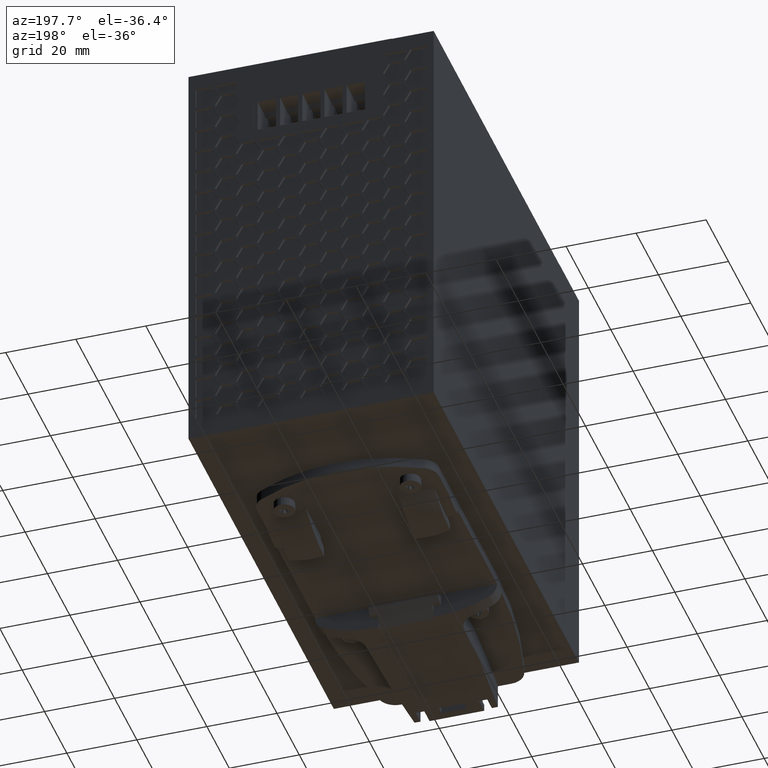
[diagram: clean part render]
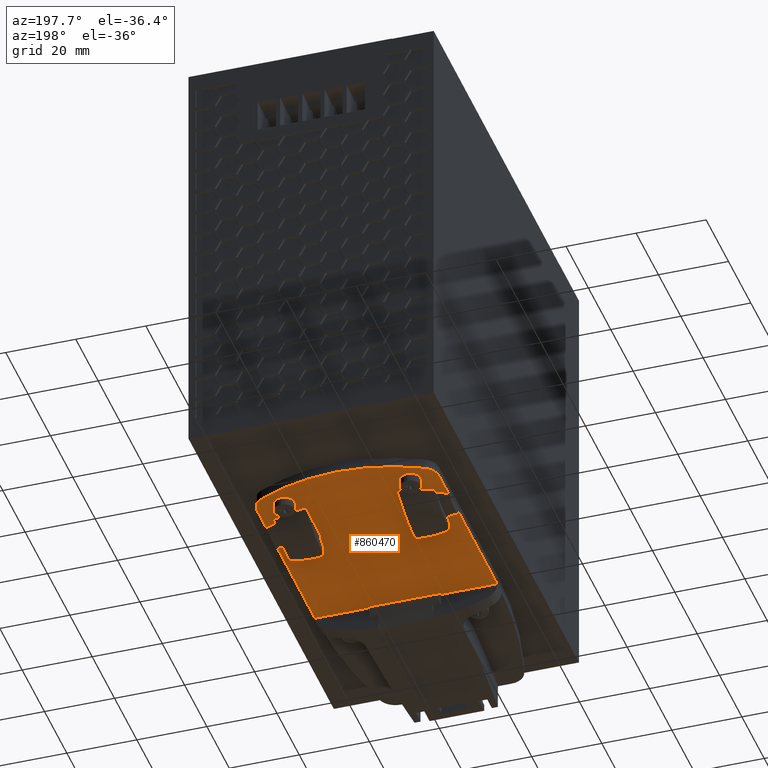
[diagram: same view with one face highlighted and labeled with its STEP entity id]
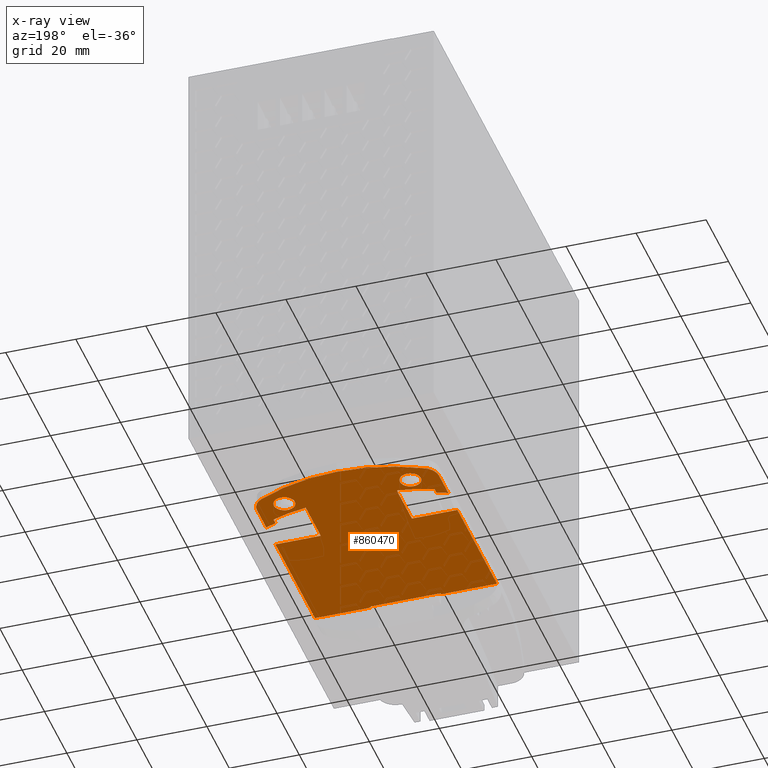
[diagram: x-ray of the same camera — body ghosted, the highlighted face saturated]
A machine part, auxiliary view. The second image highlights one B-rep face of the part: STEP entity #860470.
The next image is the same camera in x-ray: the body ghosted, the highlighted face saturated — about 0% of this face is hidden behind the body in this view.
In plain terms, the highlighted planar face has unit normal (-0, 0, -1).
Its self-contained STEP definition (entity closure, byte-faithful):
#851160=CARTESIAN_POINT('',(25.,-2.90000000000834,84.0968498908014));
#851170=VERTEX_POINT('',#851160);
#851200=CARTESIAN_POINT('',(-1.,-2.90000000000834,84.0968498908014));
#851210=DIRECTION('',(-1.,0.,0.));
#851220=VECTOR('',#851210,1.);
#851230=LINE('',#851200,#851220);
#851240=CARTESIAN_POINT('',(9.,-2.90000000000834,84.0968498908014));
#851250=VERTEX_POINT('',#851240);
#851260=EDGE_CURVE('',#851170,#851250,#851230,.T.);
#853250=CARTESIAN_POINT('',(40.775,-2.90000000000834,41.3012793438114));
#853260=DIRECTION('',(-0.,-1.,-0.));
#853270=DIRECTION('',(-1.,0.,0.));
#853280=AXIS2_PLACEMENT_3D('',#853250,#853260,#853270);
#853290=PLANE('',#853280);
#853300=CARTESIAN_POINT('',(17.,-2.90000000000834,31.5968498908015));
#853310=DIRECTION('',(0.,-1.,0.));
#853320=DIRECTION('',(0.,0.,1.));
#853330=AXIS2_PLACEMENT_3D('',#853300,#853310,#853320);
#853340=CIRCLE('',#853330,3.);
#853350=CARTESIAN_POINT('',(18.7317942957497,-2.90000000000834,
29.1471787869166));
#853360=VERTEX_POINT('',#853350);
#853370=CARTESIAN_POINT('',(17.,-2.90000000000834,34.5968498908015));
#853380=VERTEX_POINT('',#853370);
#853390=EDGE_CURVE('',#853360,#853380,#853340,.T.);
#853400=ORIENTED_EDGE('',*,*,#853390,.F.);
#853410=CARTESIAN_POINT('',(17.,-2.90000000000834,28.5968498908015));
#853420=VERTEX_POINT('',#853410);
#853430=EDGE_CURVE('',#853380,#853420,#853340,.T.);
#853440=ORIENTED_EDGE('',*,*,#853430,.F.);
#853450=EDGE_CURVE('',#853420,#853360,#853340,.T.);
#853460=ORIENTED_EDGE('',*,*,#853450,.F.);
#853470=EDGE_LOOP('',(#853460,#853440,#853400));
#853480=FACE_BOUND('',#853470,.T.);
#853490=CARTESIAN_POINT('',(53.,-2.90000000000834,31.5968498908015));
#853500=DIRECTION('',(0.,-1.,0.));
#853510=DIRECTION('',(0.,0.,1.));
#853520=AXIS2_PLACEMENT_3D('',#853490,#853500,#853510);
#853530=CIRCLE('',#853520,3.);
#853540=CARTESIAN_POINT('',(53.,-2.90000000000834,34.5968498908015));
#853550=VERTEX_POINT('',#853540);
#853560=CARTESIAN_POINT('',(53.,-2.90000000000834,28.5968498908015));
#853570=VERTEX_POINT('',#853560);
#853580=EDGE_CURVE('',#853550,#853570,#853530,.T.);
#853590=ORIENTED_EDGE('',*,*,#853580,.F.);
#853600=EDGE_CURVE('',#853570,#853550,#853530,.T.);
#853610=ORIENTED_EDGE('',*,*,#853600,.F.);
#853620=EDGE_LOOP('',(#853610,#853590));
#853630=FACE_BOUND('',#853620,.T.);
#853640=CARTESIAN_POINT('',(22.,-2.90000000000834,0.));
#853650=DIRECTION('',(0.,0.,-1.));
#853660=VECTOR('',#853650,1.);
#853670=LINE('',#853640,#853660);
#853680=CARTESIAN_POINT('',(22.,-2.90000000000834,48.5992150856014));
#853690=VERTEX_POINT('',#853680);
#853700=CARTESIAN_POINT('',(22.,-2.90000000000834,35.0890002542883));
#853710=VERTEX_POINT('',#853700);
#853720=EDGE_CURVE('',#853690,#853710,#853670,.T.);
#853730=ORIENTED_EDGE('',*,*,#853720,.T.);
#853740=CARTESIAN_POINT('',(-1.,-2.90000000000834,48.5992150856014));
#853750=DIRECTION('',(-1.,0.,0.));
#853760=VECTOR('',#853750,1.);
#853770=LINE('',#853740,#853760);
#853780=CARTESIAN_POINT('',(9.,-2.90000000000834,48.5992150856014));
#853790=VERTEX_POINT('',#853780);
#853800=EDGE_CURVE('',#853690,#853790,#853770,.T.);
#853810=ORIENTED_EDGE('',*,*,#853800,.F.);
#853820=CARTESIAN_POINT('',(9.,-2.90000000000834,0.));
#853830=DIRECTION('',(0.,0.,1.));
#853840=VECTOR('',#853830,1.);
#853850=LINE('',#853820,#853840);
#853860=EDGE_CURVE('',#853790,#851250,#853850,.T.);
#853870=ORIENTED_EDGE('',*,*,#853860,.F.);
#853880=ORIENTED_EDGE('',*,*,#851260,.T.);
#853890=CARTESIAN_POINT('',(25.,-2.90000000000834,0.));
#853900=DIRECTION('',(0.,0.,1.));
#853910=VECTOR('',#853900,1.);
#853920=LINE('',#853890,#853910);
#853930=CARTESIAN_POINT('',(25.,-2.90000000000834,83.5992150856014));
#853940=VERTEX_POINT('',#853930);
#853950=EDGE_CURVE('',#853940,#851170,#853920,.T.);
#853960=ORIENTED_EDGE('',*,*,#853950,.T.);
#853970=CARTESIAN_POINT('',(13.7,-2.90000000000834,83.5992150856014));
#853980=DIRECTION('',(1.,0.,0.));
#853990=VECTOR('',#853980,1.);
#854000=LINE('',#853970,#853990);
#854010=CARTESIAN_POINT('',(45.,-2.90000000000834,83.5992150856014));
#854020=VERTEX_POINT('',#854010);
#854030=EDGE_CURVE('',#853940,#854020,#854000,.T.);
#854040=ORIENTED_EDGE('',*,*,#854030,.F.);
#854050=CARTESIAN_POINT('',(45.,-2.90000000000834,0.));
#854060=DIRECTION('',(0.,0.,-1.));
#854070=VECTOR('',#854060,1.);
#854080=LINE('',#854050,#854070);
#854090=CARTESIAN_POINT('',(45.,-2.90000000000834,84.0968498908014));
#854100=VERTEX_POINT('',#854090);
#854110=EDGE_CURVE('',#854100,#854020,#854080,.T.);
#854120=ORIENTED_EDGE('',*,*,#854110,.T.);
#854130=CARTESIAN_POINT('',(-1.,-2.90000000000834,84.0968498908014));
#854140=DIRECTION('',(1.,0.,0.));
#854150=VECTOR('',#854140,1.);
#854160=LINE('',#854130,#854150);
#854170=CARTESIAN_POINT('',(61.,-2.90000000000834,84.0968498908014));
#854180=VERTEX_POINT('',#854170);
#854190=EDGE_CURVE('',#854100,#854180,#854160,.T.);
#854200=ORIENTED_EDGE('',*,*,#854190,.F.);
#854210=CARTESIAN_POINT('',(61.,-2.90000000000834,0.));
#854220=DIRECTION('',(0.,0.,1.));
#854230=VECTOR('',#854220,1.);
#854240=LINE('',#854210,#854230);
#854250=CARTESIAN_POINT('',(61.,-2.90000000000834,48.5992150856014));
#854260=VERTEX_POINT('',#854250);
#854270=EDGE_CURVE('',#854260,#854180,#854240,.T.);
#854280=ORIENTED_EDGE('',*,*,#854270,.T.);
#854290=CARTESIAN_POINT('',(-1.,-2.90000000000834,48.5992150856014));
#854300=DIRECTION('',(-1.,0.,0.));
#854310=VECTOR('',#854300,1.);
#854320=LINE('',#854290,#854310);
#854330=CARTESIAN_POINT('',(48.,-2.90000000000834,48.5992150856014));
#854340=VERTEX_POINT('',#854330);
#854350=EDGE_CURVE('',#854260,#854340,#854320,.T.);
#854360=ORIENTED_EDGE('',*,*,#854350,.F.);
#854370=CARTESIAN_POINT('',(48.,-2.90000000000834,0.));
#854380=DIRECTION('',(0.,0.,-1.));
#854390=VECTOR('',#854380,1.);
#854400=LINE('',#854370,#854390);
#854410=CARTESIAN_POINT('',(48.,-2.90000000000833,35.0890003545074));
#854420=VERTEX_POINT('',#854410);
#854430=EDGE_CURVE('',#854340,#854420,#854400,.T.);
#854440=ORIENTED_EDGE('',*,*,#854430,.F.);
#854450=CARTESIAN_POINT('',(77.1253755992074,-0.0241589224175964,
72.1587178152712));
#854460=CARTESIAN_POINT('',(70.664335661752,-2.44680798529034,
72.1423752645615));
#854470=CARTESIAN_POINT('',(64.2032957242966,-4.86945704816309,
72.1260327138517));
#854480=CARTESIAN_POINT('',(57.116849966181,-7.52660997419168,
72.1081082620181));
#854490=CARTESIAN_POINT('',(55.4817624491728,-8.01054048713559,
72.1026745609463));
#854500=CARTESIAN_POINT('',(53.0048222348098,-8.47560821841205,
72.0958242037655));
#854510=CARTESIAN_POINT('',(50.531224145998,-8.77872838090007,
72.0896174033807));
#854520=CARTESIAN_POINT('',(48.8969625614281,-8.93745837376605,
72.0836407750356));
#854530=CARTESIAN_POINT('',(41.6059163517444,-9.66752494661325,
72.0452335305841));
#854540=CARTESIAN_POINT('',(34.6462783539561,-10.3644069735786,
72.0085720542763));
#854550=CARTESIAN_POINT('',(27.6866403561679,-11.061289000544,
71.9719105779686));
#854560=CARTESIAN_POINT('',(77.5276185271797,-1.24850639758709,
63.6743777458501));
#854570=CARTESIAN_POINT('',(70.8648921265509,-3.25933271310826,
64.0517662746745));
#854580=CARTESIAN_POINT('',(64.202165725922,-5.27015902862943,
64.429154803499));
#854590=CARTESIAN_POINT('',(57.1170084165071,-7.40847597438215,
64.83047056115));
#854600=CARTESIAN_POINT('',(55.4835227722201,-7.80818977591963,
64.9197530436208));
#854610=CARTESIAN_POINT('',(53.0096291173331,-8.20601429825965,
65.0455605995791));
#854620=CARTESIAN_POINT('',(50.536674531595,-8.4635011099262,
65.1590996413321));
#854630=CARTESIAN_POINT('',(48.8996883805471,-8.58405179567897,
65.2236453799651));
#854640=CARTESIAN_POINT('',(41.5864955266555,-9.08909086257061,
65.4816174814066));
#854650=CARTESIAN_POINT('',(34.616242083493,-9.57044700417158,
65.7274924315463));
#854660=CARTESIAN_POINT('',(27.6459886403305,-10.0518031457725,
65.973367381686));
#854670=CARTESIAN_POINT('',(77.7891256204954,-2.56441545349597,
55.1583081392259));
#854680=CARTESIAN_POINT('',(70.9950806740214,-4.11763823129587,
55.9452925161861));
#854690=CARTESIAN_POINT('',(64.2010357275474,-5.67086100909577,
56.7322768931462));
#854700=CARTESIAN_POINT('',(57.1171668668331,-7.29034197457263,
57.5528328602818));
#854710=CARTESIAN_POINT('',(55.4852830952674,-7.60583906470366,
57.7368315262953));
#854720=CARTESIAN_POINT('',(53.0144359998564,-7.93642037810725,
57.9952969953928));
#854730=CARTESIAN_POINT('',(50.542124917192,-8.14827383895233,
58.2285818792835));
#854740=CARTESIAN_POINT('',(48.9024141996662,-8.23064521759189,
58.3636499848947));
#854750=CARTESIAN_POINT('',(41.5670747015666,-8.51065677852796,
58.9180014322293));
#854760=CARTESIAN_POINT('',(34.6125468289466,-8.77613163564808,
59.4435739149636));
#854770=CARTESIAN_POINT('',(27.6580189563267,-9.04160649276821,
59.969146397698));
#854780=CARTESIAN_POINT('',(78.1696514755378,-3.79792069590483,
51.2204589313347));
#854790=CARTESIAN_POINT('',(71.1848305891203,-4.92113887413827,
51.1338560758106));
#854800=CARTESIAN_POINT('',(64.2000097027028,-6.04435705237171,
51.0472532202865));
#854810=CARTESIAN_POINT('',(57.1173104197,-7.18331490325943,
50.9594367976895));
#854820=CARTESIAN_POINT('',(55.4869488614582,-7.41435774885076,
50.9397451432499));
#854830=CARTESIAN_POINT('',(53.0192653473317,-7.66556651152655,
50.9120840040626));
#854840=CARTESIAN_POINT('',(50.5478984844721,-7.81435510511426,
50.8871177071137));
#854850=CARTESIAN_POINT('',(48.9053907434349,-7.84473180886766,
50.8726626323847));
#854860=CARTESIAN_POINT('',(41.5459086675707,-7.8271157424021,
50.8133355870377));
#854870=CARTESIAN_POINT('',(34.5659257095143,-7.81040806617569,
50.7570678006358));
#854880=CARTESIAN_POINT('',(27.5859427514579,-7.79370038994928,
50.7008000142339));
#854890=CARTESIAN_POINT('',(78.1958360681451,-4.00604229597548,
50.5184521958206));
#854900=CARTESIAN_POINT('',(71.1965962826751,-5.04039651347857,
50.244723242599));
#854910=CARTESIAN_POINT('',(64.1973564972051,-6.07475073098166,
49.9709942893774));
#854920=CARTESIAN_POINT('',(57.1176881079733,-7.120990762953,
49.6941199034814));
#854930=CARTESIAN_POINT('',(55.4880457160437,-7.33505226837741,
49.6328273563541));
#854940=CARTESIAN_POINT('',(53.0210791414076,-7.56938777648838,
49.5489559635167));
#854950=CARTESIAN_POINT('',(50.5495998634878,-7.70554347067014,
49.4754536856325));
#854960=CARTESIAN_POINT('',(48.9061880714091,-7.72731701740634,
49.4343618501615));
#854970=CARTESIAN_POINT('',(41.5402357873154,-7.66458690798904,
49.2692298713624));
#854980=CARTESIAN_POINT('',(34.5657190482154,-7.60519035187486,
49.1128732041082));
#854990=CARTESIAN_POINT('',(27.5912023091153,-7.54579379576069,
48.9565165368539));
#855000=CARTESIAN_POINT('',(78.1971196207098,-4.20938947861462,
49.581272453886));
#855010=CARTESIAN_POINT('',(71.1924236158769,-5.10420908205171,
48.9980203710671));
#855020=CARTESIAN_POINT('',(64.1877276110439,-5.9990286854888,
48.4147682882482));
#855030=CARTESIAN_POINT('',(57.1190599232003,-6.90202039460803,
47.8261895478082));
#855040=CARTESIAN_POINT('',(55.491467403211,-7.08826144315788,
47.697888985884));
#855050=CARTESIAN_POINT('',(53.02580321421,-7.29328071540834,
47.5279698057012));
#855060=CARTESIAN_POINT('',(50.5534712121632,-7.40991942400524,
47.3847382201042));
#855070=CARTESIAN_POINT('',(48.9078803559888,-7.42311419751246,
47.3085340039519));
#855080=CARTESIAN_POINT('',(41.5281901564157,-7.32745258295249,
47.0118618754869));
#855090=CARTESIAN_POINT('',(34.5659796108065,-7.23720268306673,
46.7319729146323));
#855100=CARTESIAN_POINT('',(27.6037690651973,-7.14695278318096,
46.4520839537777));
#855110=CARTESIAN_POINT('',(78.14727380979,-4.31166005681364,
48.7241720626889));
#855120=CARTESIAN_POINT('',(71.1607007212876,-5.0578303122961,
47.8155644045694));
#855130=CARTESIAN_POINT('',(64.1741276327852,-5.80400056777857,
46.9069567464499));
#855140=CARTESIAN_POINT('',(57.1209978417221,-6.55727911957808,
45.9896933526958));
#855150=CARTESIAN_POINT('',(55.4961282366978,-6.71337018653708,
45.791664681765));
#855160=CARTESIAN_POINT('',(53.0319035358,-6.88582369350843,
45.5348475781017));
#855170=CARTESIAN_POINT('',(50.5582301065976,-6.98290130661178,
45.3239500891211));
#855180=CARTESIAN_POINT('',(48.9099006757897,-6.99142449751895,
45.215640339758));
#855190=CARTESIAN_POINT('',(41.5138068117814,-6.89275794075477,
44.8039510040365));
#855200=CARTESIAN_POINT('',(34.5665232623987,-6.80007867528227,
44.4172438310201));
#855210=CARTESIAN_POINT('',(27.619239713016,-6.70739940980977,
44.0305366580037));
#855220=CARTESIAN_POINT('',(78.0440000129732,-4.31063747550679,
47.9115516637001));
#855230=CARTESIAN_POINT('',(71.1010985749711,-4.90008259340228,
46.6751283753687));
#855240=CARTESIAN_POINT('',(64.1581971369691,-5.48952771129777,
45.4387050870373));
#855250=CARTESIAN_POINT('',(57.1232680192136,-6.08678588358072,
44.1858930932873));
#855260=CARTESIAN_POINT('',(55.5015016347256,-6.21082713726207,
43.9171433231477));
#855270=CARTESIAN_POINT('',(53.03876259293,-6.3484053935083,
43.5734112051015));
#855280=CARTESIAN_POINT('',(50.5634489952508,-6.4261743734329,
43.2960038942695));
#855290=CARTESIAN_POINT('',(48.9120816722819,-6.43311954809042,
43.1569010522286));
#855300=CARTESIAN_POINT('',(41.4982779088274,-6.35430492300394,
42.6368091027382));
#855310=CARTESIAN_POINT('',(34.5678390048054,-6.28062885045968,
42.1506260858386));
#855320=CARTESIAN_POINT('',(27.6374001007833,-6.20695277791541,
41.6644430689391));
#855330=CARTESIAN_POINT('',(77.8902779541947,-4.19590071246779,
47.1103177431818));
#855340=CARTESIAN_POINT('',(71.0159086210256,-4.62461350843402,
45.5561849567794));
#855350=CARTESIAN_POINT('',(64.1415392878565,-5.05332630440024,
44.002052170377));
#855360=CARTESIAN_POINT('',(57.1256419464317,-5.49086534539146,
42.4159232389954));
#855370=CARTESIAN_POINT('',(55.507071692385,-5.58179742062032,
42.0770270095323));
#855380=CARTESIAN_POINT('',(53.04577249166,-5.68331420490824,
41.6471466100013));
#855390=CARTESIAN_POINT('',(50.5687045090808,-5.74209663392696,
41.3035821765645));
#855400=CARTESIAN_POINT('',(48.9142568856916,-5.74934888144503,
41.1334457825351));
#855410=CARTESIAN_POINT('',(41.482789162899,-5.70391667955919,
40.5023934347984));
#855420=CARTESIAN_POINT('',(34.5714646411442,-5.66166436781089,
39.9155096955276));
#855430=CARTESIAN_POINT('',(27.6601401193894,-5.61941205606258,
39.3286259562567));
#855440=CARTESIAN_POINT('',(77.6944328974397,-3.94963908265929,
46.2917333179676));
#855450=CARTESIAN_POINT('',(70.9100763684923,-4.22030323552199,
44.4408317905988));
#855460=CARTESIAN_POINT('',(64.1257198395449,-4.4909673883847,
42.5899302632299));
#855470=CARTESIAN_POINT('',(57.1278964491967,-4.77014787245122,
40.6807909150561));
#855480=CARTESIAN_POINT('',(55.5123331817069,-4.82816264350902,
40.273731021188));
#855490=CARTESIAN_POINT('',(53.05233495746,-4.89373821890814,
39.7592036742016));
#855500=CARTESIAN_POINT('',(50.5735774616433,-4.93369884585104,
39.3491353738253));
#855510=CARTESIAN_POINT('',(48.9162607550087,-4.94153992488759,
39.1463135750572));
#855520=CARTESIAN_POINT('',(41.4685198488878,-4.93143756568219,
38.3933066299252));
#855530=CARTESIAN_POINT('',(34.5795051498765,-4.92209308096689,
37.696789930585));
#855540=CARTESIAN_POINT('',(27.6904904508651,-4.91274859625159,
37.0002732312449));
#855550=CARTESIAN_POINT('',(77.4693838324478,-3.54778055712907,
45.4329560162867));
#855560=CARTESIAN_POINT('',(70.7908254825482,-3.67182863586377,
43.3145603817995));
#855570=CARTESIAN_POINT('',(64.1122671326485,-3.79587671459848,
41.1961647473123));
#855580=CARTESIAN_POINT('',(57.1298136888351,-3.92556936519463,
38.9813755490406));
#855590=CARTESIAN_POINT('',(55.5167915526307,-3.95252071180386,
38.509383451989));
#855600=CARTESIAN_POINT('',(53.0578613363308,-3.98376503845253,
37.9123958524483));
#855610=CARTESIAN_POINT('',(50.5776528499558,-4.00468432189791,
37.4348814220592));
#855620=CARTESIAN_POINT('',(48.9179286183689,-4.01139780775344,
37.1964524716643));
#855630=CARTESIAN_POINT('',(41.4566427987235,-4.02473294505085,
36.302796249533));
#855640=CARTESIAN_POINT('',(34.5944271354381,-4.03699739788731,
35.4808921068241));
#855650=CARTESIAN_POINT('',(27.7322114721528,-4.04926185072376,
34.6589879641153));
#855660=CARTESIAN_POINT('',(77.3136354720964,-3.15753869570322,
44.8258220783123));
#855670=CARTESIAN_POINT('',(70.7097529595056,-3.19786047207976,
42.5507634475484));
#855680=CARTESIAN_POINT('',(64.1058704469148,-3.2381822484563,
40.2757048167846));
#855690=CARTESIAN_POINT('',(57.1307253368297,-3.28077086822452,
37.8727450346755));
#855700=CARTESIAN_POINT('',(55.5189058040953,-3.28963104535092,
37.3603452521709));
#855710=CARTESIAN_POINT('',(53.0604688394332,-3.30017646620769,
36.7102660582208));
#855720=CARTESIAN_POINT('',(50.5795641843839,-3.30784766765623,
36.1868316590526));
#855730=CARTESIAN_POINT('',(48.9187073473575,-3.31106978229951,
35.9219645235535));
#855740=CARTESIAN_POINT('',(41.4510972061684,-3.32137070032301,
34.9174360069633));
#855750=CARTESIAN_POINT('',(34.6104624301834,-3.33080676041771,
33.9972470075197));
#855760=CARTESIAN_POINT('',(27.7698276541984,-3.34024282051241,
33.0770580080761));
#855770=CARTESIAN_POINT('',(76.4083338205937,-0.736202104567354,
41.4542382954953));
#855780=CARTESIAN_POINT('',(70.2452213123736,-0.424581733889091,
38.5085634530792));
#855790=CARTESIAN_POINT('',(64.0821088041536,-0.112961363210827,
35.5628886106631));
#855800=CARTESIAN_POINT('',(57.1341118339912,0.23834447266767,
32.2420763014778));
#855810=CARTESIAN_POINT('',(55.5267514968996,0.311429839580776,
31.5311225807569));
#855820=CARTESIAN_POINT('',(53.0701214650967,0.398400269451116,
30.6141907473977));
#855830=CARTESIAN_POINT('',(50.5866161838789,0.461631629509813,
29.8517825143394));
#855840=CARTESIAN_POINT('',(48.9215725947422,0.488150789407816,
29.4424991364718));
#855850=CARTESIAN_POINT('',(41.4306924170975,0.57277535608233,
27.8139112168226));
#855860=CARTESIAN_POINT('',(34.743598629147,0.648319537900372,
26.3600740304905));
#855870=CARTESIAN_POINT('',(28.0565048411964,0.723863719718414,
24.9062368441584));
#855880=CARTESIAN_POINT('',(76.7062872300324,4.16935056400055,
34.6662801668324));
#855890=CARTESIAN_POINT('',(70.38124465141,4.14247582402699,
31.8927173322943));
#855900=CARTESIAN_POINT('',(64.0562020727876,4.11560108405342,
29.1191544977562));
#855910=CARTESIAN_POINT('',(57.1378146877937,4.08620525632627,
26.0854069952791));
#855920=CARTESIAN_POINT('',(55.534955297764,4.07685720681804,
25.43583142128));
#855930=CARTESIAN_POINT('',(53.0796502731668,4.04953407233294,
24.596311919126));
#855940=CARTESIAN_POINT('',(50.5932455893868,4.00522332038507,
23.8963638103901));
#855950=CARTESIAN_POINT('',(48.9241921153071,3.96154595645529,
23.5187199465663));
#855960=CARTESIAN_POINT('',(41.4120041351111,3.73001877239524,
22.0121443375364));
#855970=CARTESIAN_POINT('',(34.7044861137435,3.52329168254961,
20.6669459646041));
#855980=CARTESIAN_POINT('',(27.9969680923758,3.31656459270398,
19.3217475916718));
#855990=CARTESIAN_POINT('',(76.9457883360215,9.11303885729295,
27.8250655245848));
#856000=CARTESIAN_POINT('',(70.4880418387216,8.72860119430532,
25.250242954717));
#856010=CARTESIAN_POINT('',(64.0302953414217,8.34416353131769,
22.6754203848492));
#856020=CARTESIAN_POINT('',(57.1415175415962,7.93406603998487,
19.9287376890804));
#856030=CARTESIAN_POINT('',(55.5431590986283,7.84228457405531,
19.3405402618031));
#856040=CARTESIAN_POINT('',(53.0891790812369,7.70066787521476,
18.5784330908543));
#856050=CARTESIAN_POINT('',(50.5998749948948,7.54881501126033,
17.9409451064408));
#856060=CARTESIAN_POINT('',(48.9268116358721,7.43494112350275,
17.5949407566607));
#856070=CARTESIAN_POINT('',(41.3933158531247,6.88726218870817,
16.2103774582502));
#856080=CARTESIAN_POINT('',(34.6850957402231,6.39958011497352,
14.9774896152314));
#856090=CARTESIAN_POINT('',(27.9768756273215,5.91189804123886,
13.7446017722126));
#856100=B_SPLINE_SURFACE_WITH_KNOTS('',3,3,((#854450,#854560,#854670,
#854780,#854890,#855000,#855110,#855220,#855330,#855440,#855550,#855660,
#855770,#855880,#855990),(#854460,#854570,#854680,#854790,#854900,
#855010,#855120,#855230,#855340,#855450,#855560,#855670,#855780,#855890,
#856000),(#854470,#854580,#854690,#854800,#854910,#855020,#855130,
#855240,#855350,#855460,#855570,#855680,#855790,#855900,#856010),(
#854480,#854590,#854700,#854810,#854920,#855030,#855140,#855250,#855360,
#855470,#855580,#855690,#855800,#855910,#856020),(#854490,#854600,
#854710,#854820,#854930,#855040,#855150,#855260,#855370,#855480,#855590,
#855700,#855810,#855920,#856030),(#854500,#854610,#854720,#854830,
#854940,#855050,#855160,#855270,#855380,#855490,#855600,#855710,#855820,
#855930,#856040),(#854510,#854620,#854730,#854840,#854950,#855060,
#855170,#855280,#855390,#855500,#855610,#855720,#855830,#855940,#856050)
,(#854520,#854630,#854740,#854850,#854960,#855070,#855180,#855290,
#855400,#855510,#855620,#855730,#855840,#855950,#856060),(#854530,
#854640,#854750,#854860,#854970,#855080,#855190,#855300,#855410,#855520,
#855630,#855740,#855850,#855960,#856070),(#854540,#854650,#854760,
#854870,#854980,#855090,#855200,#855310,#855420,#855530,#855640,#855750,
#855860,#855970,#856080),(#854550,#854660,#854770,#854880,#854990,
#855100,#855210,#855320,#855430,#855540,#855650,#855760,#855870,#855980,
#856090)),.UNSPECIFIED.,.F.,.F.,.F.,(4,2,1,1,1,2,4),(4,2,1,1,1,1,1,1,1,2
,4),(-1.88944656118273,0.00831619238758589,0.25,0.5,0.75,
0.990153097493994,2.94222789825215),(-1.16260988824048,
-7.67162766264694E-9,0.12442326814,0.2488465362801,0.3732698044201,
0.4976930725602,0.6221163407002,0.7465396088403,0.8709628769803,
0.995386222790939,2.14909557170856),.UNSPECIFIED.);
#856110=CARTESIAN_POINT('',(48.,-2.90000000000834,35.0890003545074));
#856120=CARTESIAN_POINT('',(48.8517527674043,-2.90000000000834,
35.2112415140407));
#856130=CARTESIAN_POINT('',(49.7000614963543,-2.90000000000833,
35.3518880738993));
#856140=CARTESIAN_POINT('',(50.5447742805632,-2.90000000000833,
35.5161732547488));
#856150=CARTESIAN_POINT('',(51.3890944700488,-2.90000000000833,
35.6803820812487));
#856160=CARTESIAN_POINT('',(52.2294337389637,-2.90000000000833,
35.866508237478));
#856170=CARTESIAN_POINT('',(53.0641269338766,-2.90000000000833,
36.0741730200846));
#856180=CARTESIAN_POINT('',(53.8988232812549,-2.90000000000833,
36.2818385869986));
#856190=CARTESIAN_POINT('',(54.7284075510733,-2.90000000000834,
36.5111752533473));
#856200=CARTESIAN_POINT('',(55.5512976913298,-2.90000000000834,
36.7615519458046));
#856210=CARTESIAN_POINT('',(56.3745144834575,-2.90000000000834,
37.012028027003));
#856220=CARTESIAN_POINT('',(57.1901476076442,-2.90000000000833,
37.2846987098254));
#856230=CARTESIAN_POINT('',(58.,-2.90000000000833,37.575340814434));
#856240=B_SPLINE_CURVE_WITH_KNOTS('',3,(#856110,#856120,#856130,#856140,
#856150,#856160,#856170,#856180,#856190,#856200,#856210,#856220,#856230)
,.UNSPECIFIED.,.F.,.F.,(4,3,3,3,4),(0.,2.58064236166617,5.16133759229413
,7.74203156768034,10.3226785169198),.UNSPECIFIED.);
#856250=SURFACE_CURVE('',#856240,(#853290,#856100),.CURVE_3D.);
#856260=CARTESIAN_POINT('',(58.,-2.90000000000833,37.575340814434));
#856270=VERTEX_POINT('',#856260);
#856280=EDGE_CURVE('',#854420,#856270,#856250,.T.);
#856290=ORIENTED_EDGE('',*,*,#856280,.F.);
#856300=CARTESIAN_POINT('',(58.,-2.90000000000834,0.));
#856310=DIRECTION('',(0.,0.,-1.));
#856320=VECTOR('',#856310,1.);
#856330=LINE('',#856300,#856320);
#856340=CARTESIAN_POINT('',(57.9999999999998,-2.90000000000821,
39.3405513535793));
#856350=VERTEX_POINT('',#856340);
#856360=EDGE_CURVE('',#856350,#856270,#856330,.T.);
#856370=ORIENTED_EDGE('',*,*,#856360,.T.);
#856380=CARTESIAN_POINT('',(71.3776186215084,-1.50441604344967,
59.3890615417308));
#856390=CARTESIAN_POINT('',(67.8905807945972,-2.46315462781471,
59.3760409726225));
#856400=CARTESIAN_POINT('',(64.403542967686,-3.42189321217974,
59.3630204035142));
#856410=CARTESIAN_POINT('',(59.940036942065,-4.64910543663078,
59.3463537105913));
#856420=CARTESIAN_POINT('',(58.960256886242,-4.85962099943991,
59.3427317559507));
#856430=CARTESIAN_POINT('',(54.4409182175586,-5.635865212246,
59.3269920216905));
#856440=CARTESIAN_POINT('',(50.8633678936988,-6.25034731648889,
59.3145323023537));
#856450=CARTESIAN_POINT('',(47.2858175698389,-6.86482942073177,
59.3020725830168));
#856460=CARTESIAN_POINT('',(71.4649916167112,-1.82158789204662,
55.3070226782829));
#856470=CARTESIAN_POINT('',(67.933910524371,-2.66380690772467,
55.4173793020009));
#856480=CARTESIAN_POINT('',(64.4028294320308,-3.50602592340273,
55.527735925719));
#856490=CARTESIAN_POINT('',(59.9402583424642,-4.57042012227885,
55.6672043394053));
#856500=CARTESIAN_POINT('',(58.9611211893232,-4.75735439246061,
55.6966888895867));
#856510=CARTESIAN_POINT('',(54.4445600352414,-5.4540363797365,
55.8262367667353));
#856520=CARTESIAN_POINT('',(50.8531594499154,-6.00801185167878,
55.9292483957041));
#856530=CARTESIAN_POINT('',(47.2617588645895,-6.56198732362106,
56.032260024673));
#856540=CARTESIAN_POINT('',(71.5286159205105,-2.15008544180546,
51.2202886757841));
#856550=CARTESIAN_POINT('',(67.9653659084431,-2.87012203821559,
51.456370061854));
#856560=CARTESIAN_POINT('',(64.4021158963756,-3.59015863462571,
51.6924514479238));
#856570=CARTESIAN_POINT('',(59.9404797428634,-4.49173480792692,
51.9880549682194));
#856580=CARTESIAN_POINT('',(58.9619854924043,-4.6550877854813,
52.0506460232228));
#856590=CARTESIAN_POINT('',(54.4482018529241,-5.27220754722704,
52.3254815117802));
#856600=CARTESIAN_POINT('',(50.8499081675462,-5.76416248330085,
52.5445746012991));
#856610=CARTESIAN_POINT('',(47.2516144821684,-6.25611741937468,
52.763667690818));
#856620=CARTESIAN_POINT('',(71.6483174526818,-2.76885470265374,
46.1844097025758));
#856630=CARTESIAN_POINT('',(68.0245824565934,-3.25896317020212,
45.9625142285715));
#856640=CARTESIAN_POINT('',(64.400847460505,-3.74907163775051,
45.7406187545671));
#856650=CARTESIAN_POINT('',(59.9408721296792,-4.35228122041981,
45.4675170125386));
#856660=CARTESIAN_POINT('',(58.9635597476711,-4.46881777421632,
45.409686028064));
#856670=CARTESIAN_POINT('',(54.455157280269,-4.91477929632723,
45.1557333852177));
#856680=CARTESIAN_POINT('',(50.8298122310565,-5.27339066876216,
44.9515222565232));
#856690=CARTESIAN_POINT('',(47.204467181844,-5.63200204119708,
44.7473111278287));
#856700=CARTESIAN_POINT('',(71.6049814775971,-2.62228922657929,
44.1862294668129));
#856710=CARTESIAN_POINT('',(67.9952071859746,-2.99199532571181,
43.6766161009097));
#856720=CARTESIAN_POINT('',(64.3854328943521,-3.36170142484436,
43.1670027350064));
#856730=CARTESIAN_POINT('',(59.9456771456137,-3.81641261905298,
42.5402159366867));
#856740=CARTESIAN_POINT('',(58.971404518455,-3.90418316006749,
42.4135243350508));
#856750=CARTESIAN_POINT('',(54.4708672381153,-4.23934325729022,
41.8824170975357));
#856760=CARTESIAN_POINT('',(50.8596925148013,-4.50827151984262,
41.4562633047737));
#856770=CARTESIAN_POINT('',(47.2485177914873,-4.77719978239505,
41.0301095120117));
#856780=CARTESIAN_POINT('',(71.2943671864489,-1.34931680143503,
39.9382223000965));
#856790=CARTESIAN_POINT('',(67.8245274244743,-1.43722363529471,
38.8826468176419));
#856800=CARTESIAN_POINT('',(64.3546876624996,-1.5251304691544,
37.8270713351873));
#856810=CARTESIAN_POINT('',(59.9552615333447,-1.63658795663027,
36.4887022238243));
#856820=CARTESIAN_POINT('',(58.9868939039784,-1.65819126235366,
36.2221875959119));
#856830=CARTESIAN_POINT('',(54.5012358905247,-1.74300799729869,
35.1192682247638));
#856840=CARTESIAN_POINT('',(50.9899657319504,-1.80940059108694,
34.2559282502025));
#856850=CARTESIAN_POINT('',(47.4786955733761,-1.87579318487518,
33.3925882756412));
#856860=CARTESIAN_POINT('',(71.4222429006199,-0.0255577472793451,
35.9540887202444));
#856870=CARTESIAN_POINT('',(67.879676351948,-0.136535036826837,
35.0450510826265));
#856880=CARTESIAN_POINT('',(64.3371098032761,-0.247512326374322,
34.1360134450086));
#856890=CARTESIAN_POINT('',(59.9607663109547,-0.38460918319659,
33.0130250988458));
#856900=CARTESIAN_POINT('',(58.9954847551747,-0.412500647180176,
32.7882971712962));
#856910=CARTESIAN_POINT('',(54.516650024788,-0.534077769304675,
31.8503565946234));
#856920=CARTESIAN_POINT('',(50.9619732528168,-0.630568798341089,
31.1059496713744));
#856930=CARTESIAN_POINT('',(47.4072964808457,-0.727059827377504,
30.3615427481253));
#856940=CARTESIAN_POINT('',(71.5325160442117,1.29974594385051,
31.9487843553515));
#856950=CARTESIAN_POINT('',(67.9260239941322,1.16492588012812,
31.1968699550907));
#856960=CARTESIAN_POINT('',(64.3195319440527,1.03010581640573,
30.4449555548298));
#856970=CARTESIAN_POINT('',(59.9662710885648,0.867369590237102,
29.5373479738673));
#856980=CARTESIAN_POINT('',(59.004075606371,0.833189967993304,
29.3544067466805));
#856990=CARTESIAN_POINT('',(54.5320641590512,0.674852458689349,
28.581444964483));
#857000=CARTESIAN_POINT('',(50.9401788551655,0.547676985320733,
27.9606079879577));
#857010=CARTESIAN_POINT('',(47.3482935512799,0.420501511952123,
27.3397710114324));
#857020=B_SPLINE_SURFACE_WITH_KNOTS('',3,3,((#856380,#856460,#856540,
#856620,#856700,#856780,#856860,#856940),(#856390,#856470,#856550,
#856630,#856710,#856790,#856870,#856950),(#856400,#856480,#856560,
#856640,#856720,#856800,#856880,#856960),(#856410,#856490,#856570,
#856650,#856730,#856810,#856890,#856970),(#856420,#856500,#856580,
#856660,#856740,#856820,#856900,#856980),(#856430,#856510,#856590,
#856670,#856750,#856830,#856910,#856990),(#856440,#856520,#856600,
#856680,#856760,#856840,#856920,#857000),(#856450,#856530,#856610,
#856690,#856770,#856850,#856930,#857010)),.UNSPECIFIED.,.F.,.F.,.F.,(4,2
,2,4),(4,2,2,4),(-1.04425037197643,0.00840241999769925,0.303174667007196
,1.36540567626834),(-0.672680963199468,0.00647129604993427,
0.596721513342289,1.28419559916893),.UNSPECIFIED.);
#857030=CARTESIAN_POINT('',(57.9999999999999,-2.90000000000821,
39.3405513535793));
#857040=CARTESIAN_POINT('',(58.2541889821016,-2.90000000000821,
39.4196176760751));
#857050=CARTESIAN_POINT('',(58.5074653837831,-2.90000000000834,
39.5015502887454));
#857060=CARTESIAN_POINT('',(58.7597802388888,-2.90000000000834,
39.5866855746479));
#857070=CARTESIAN_POINT('',(59.0120800483759,-2.90000000000834,
39.6718157839051));
#857080=CARTESIAN_POINT('',(59.2633814821107,-2.90000000000833,
39.7600531230236));
#857090=CARTESIAN_POINT('',(59.5135549516989,-2.90000000000833,
39.8513888615855));
#857100=CARTESIAN_POINT('',(59.7637284016781,-2.90000000000833,
39.9427245929883));
#857110=CARTESIAN_POINT('',(60.012774928875,-2.90000000000833,
40.0371585186528));
#857120=CARTESIAN_POINT('',(60.2605568882091,-2.90000000000833,
40.1347048697334));
#857130=CARTESIAN_POINT('',(60.5083874789949,-2.90000000000833,
40.2322703659556));
#857140=CARTESIAN_POINT('',(60.7546293183135,-2.90000000000834,
40.3333263089395));
#857150=CARTESIAN_POINT('',(61.0000000000002,-2.90000000000834,
40.4366382723886));
#857160=B_SPLINE_CURVE_WITH_KNOTS('',3,(#857030,#857040,#857050,#857060,
#857070,#857080,#857090,#857100,#857110,#857120,#857130,#857140,#857150)
,.UNSPECIFIED.,.F.,.F.,(4,3,3,3,4),(0.,0.798672845791449,
1.59759488273882,2.39653985817602,3.19526958822701),.UNSPECIFIED.);
#857170=SURFACE_CURVE('',#857160,(#853290,#857020),.CURVE_3D.);
#857180=CARTESIAN_POINT('',(61.,-2.90000000000834,40.4366382723885));
#857190=VERTEX_POINT('',#857180);
#857200=EDGE_CURVE('',#856350,#857190,#857170,.T.);
#857210=ORIENTED_EDGE('',*,*,#857200,.F.);
#857220=CARTESIAN_POINT('',(61.,-2.90000000000834,0.));
#857230=DIRECTION('',(0.,0.,1.));
#857240=VECTOR('',#857230,1.);
#857250=LINE('',#857220,#857240);
#857260=CARTESIAN_POINT('',(61.,-2.90000000000834,32.1473524065366));
#857270=VERTEX_POINT('',#857260);
#857280=EDGE_CURVE('',#857270,#857190,#857250,.T.);
#857290=ORIENTED_EDGE('',*,*,#857280,.T.);
#857300=CARTESIAN_POINT('',(56.,-2.90000000000834,32.1473524065366));
#857310=DIRECTION('',(0.,-1.,0.));
#857320=DIRECTION('',(-1.,0.,0.));
#857330=AXIS2_PLACEMENT_3D('',#857300,#857310,#857320);
#857340=CIRCLE('',#857330,5.);
#857350=CARTESIAN_POINT('',(58.3333333333333,-2.90000000000834,
27.7251860193961));
#857360=VERTEX_POINT('',#857350);
#857370=EDGE_CURVE('',#857360,#857270,#857340,.T.);
#857380=ORIENTED_EDGE('',*,*,#857370,.T.);
#857390=CARTESIAN_POINT('',(35.0000000000001,-2.90000000000834,
71.9468498908014));
#857400=DIRECTION('',(0.,-1.,0.));
#857410=DIRECTION('',(-1.,0.,0.));
#857420=AXIS2_PLACEMENT_3D('',#857390,#857400,#857410);
#857430=CIRCLE('',#857420,50.);
#857440=CARTESIAN_POINT('',(11.6666666666667,-2.90000000000834,
27.7251860193961));
#857450=VERTEX_POINT('',#857440);
#857460=EDGE_CURVE('',#857450,#857360,#857430,.T.);
#857470=ORIENTED_EDGE('',*,*,#857460,.T.);
#857480=CARTESIAN_POINT('',(14.,-2.90000000000834,32.1473524065367));
#857490=DIRECTION('',(0.,-1.,0.));
#857500=DIRECTION('',(-1.,0.,0.));
#857510=AXIS2_PLACEMENT_3D('',#857480,#857490,#857500);
#857520=CIRCLE('',#857510,5.);
#857530=CARTESIAN_POINT('',(9.,-2.90000000000834,32.1473524065367));
#857540=VERTEX_POINT('',#857530);
#857550=EDGE_CURVE('',#857540,#857450,#857520,.T.);
#857560=ORIENTED_EDGE('',*,*,#857550,.T.);
#857570=CARTESIAN_POINT('',(9.,-2.90000000000834,0.));
#857580=DIRECTION('',(0.,0.,1.));
#857590=VECTOR('',#857580,1.);
#857600=LINE('',#857570,#857590);
#857610=CARTESIAN_POINT('',(9.,-2.90000000000834,40.4366382723885));
#857620=VERTEX_POINT('',#857610);
#857630=EDGE_CURVE('',#857540,#857620,#857600,.T.);
#857640=ORIENTED_EDGE('',*,*,#857630,.F.);
#857650=CARTESIAN_POINT('',(18.775,-2.90000000000834,41.3012793438114));
#857660=DIRECTION('',(-0.,-1.,-0.));
#857670=DIRECTION('',(-1.,0.,0.));
#857680=AXIS2_PLACEMENT_3D('',#857650,#857660,#857670);
#857690=PLANE('',#857680);
#857700=CARTESIAN_POINT('',(-1.3776186215084,-1.50441604344967,
59.3890615417308));
#857710=CARTESIAN_POINT('',(2.10941920540283,-2.46315462781471,
59.3760409726225));
#857720=CARTESIAN_POINT('',(5.59645703231406,-3.42189321217974,
59.3630204035142));
#857730=CARTESIAN_POINT('',(10.059963057935,-4.64910543663078,
59.3463537105913));
#857740=CARTESIAN_POINT('',(11.039743113758,-4.85962099943991,
59.3427317559507));
#857750=CARTESIAN_POINT('',(15.5590817824414,-5.635865212246,
59.3269920216905));
#857760=CARTESIAN_POINT('',(19.1366321063012,-6.25034731648889,
59.3145323023537));
#857770=CARTESIAN_POINT('',(22.7141824301611,-6.86482942073177,
59.3020725830168));
#857780=CARTESIAN_POINT('',(-1.46499161671124,-1.82158789204662,
55.3070226782829));
#857790=CARTESIAN_POINT('',(2.06608947562899,-2.66380690772467,
55.4173793020009));
#857800=CARTESIAN_POINT('',(5.59717056796922,-3.50602592340273,
55.527735925719));
#857810=CARTESIAN_POINT('',(10.0597416575358,-4.57042012227885,
55.6672043394053));
#857820=CARTESIAN_POINT('',(11.0388788106768,-4.75735439246061,
55.6966888895867));
#857830=CARTESIAN_POINT('',(15.5554399647586,-5.4540363797365,
55.8262367667353));
#857840=CARTESIAN_POINT('',(19.1468405500846,-6.00801185167878,
55.9292483957041));
#857850=CARTESIAN_POINT('',(22.7382411354105,-6.56198732362106,
56.032260024673));
#857860=CARTESIAN_POINT('',(-1.52861592051053,-2.15008544180546,
51.2202886757841));
#857870=CARTESIAN_POINT('',(2.03463409155692,-2.87012203821559,
51.456370061854));
#857880=CARTESIAN_POINT('',(5.59788410362438,-3.59015863462571,
51.6924514479238));
#857890=CARTESIAN_POINT('',(10.0595202571366,-4.49173480792692,
51.9880549682194));
#857900=CARTESIAN_POINT('',(11.0380145075957,-4.6550877854813,
52.0506460232228));
#857910=CARTESIAN_POINT('',(15.5517981470759,-5.27220754722704,
52.3254815117802));
#857920=CARTESIAN_POINT('',(19.1500918324538,-5.76416248330085,
52.5445746012991));
#857930=CARTESIAN_POINT('',(22.7483855178316,-6.25611741937468,
52.763667690818));
#857940=CARTESIAN_POINT('',(-1.64831745268176,-2.76885470265374,
46.1844097025758));
#857950=CARTESIAN_POINT('',(1.97541754340661,-3.25896317020212,
45.9625142285715));
#857960=CARTESIAN_POINT('',(5.59915253949497,-3.74907163775051,
45.7406187545671));
#857970=CARTESIAN_POINT('',(10.0591278703208,-4.35228122041981,
45.4675170125386));
#857980=CARTESIAN_POINT('',(11.0364402523289,-4.46881777421632,
45.409686028064));
#857990=CARTESIAN_POINT('',(15.544842719731,-4.91477929632723,
45.1557333852177));
#858000=CARTESIAN_POINT('',(19.1701877689435,-5.27339066876216,
44.9515222565232));
#858010=CARTESIAN_POINT('',(22.795532818156,-5.63200204119708,
44.7473111278287));
#858020=CARTESIAN_POINT('',(-1.60498147759709,-2.62228922657929,
44.1862294668129));
#858030=CARTESIAN_POINT('',(2.00479281402542,-2.99199532571181,
43.6766161009097));
#858040=CARTESIAN_POINT('',(5.61456710564794,-3.36170142484436,
43.1670027350064));
#858050=CARTESIAN_POINT('',(10.0543228543863,-3.81641261905298,
42.5402159366867));
#858060=CARTESIAN_POINT('',(11.028595481545,-3.90418316006749,
42.4135243350508));
#858070=CARTESIAN_POINT('',(15.5291327618847,-4.23934325729022,
41.8824170975357));
#858080=CARTESIAN_POINT('',(19.1403074851987,-4.50827151984262,
41.4562633047737));
#858090=CARTESIAN_POINT('',(22.7514822085127,-4.77719978239505,
41.0301095120117));
#858100=CARTESIAN_POINT('',(-1.29436718644891,-1.34931680143503,
39.9382223000965));
#858110=CARTESIAN_POINT('',(2.17547257552575,-1.43722363529471,
38.8826468176419));
#858120=CARTESIAN_POINT('',(5.6453123375004,-1.5251304691544,
37.8270713351873));
#858130=CARTESIAN_POINT('',(10.0447384666553,-1.63658795663027,
36.4887022238243));
#858140=CARTESIAN_POINT('',(11.0131060960216,-1.65819126235366,
36.2221875959119));
#858150=CARTESIAN_POINT('',(15.4987641094753,-1.74300799729869,
35.1192682247638));
#858160=CARTESIAN_POINT('',(19.0100342680496,-1.80940059108694,
34.2559282502025));
#858170=CARTESIAN_POINT('',(22.5213044266239,-1.87579318487518,
33.3925882756412));
#858180=CARTESIAN_POINT('',(-1.42224290061988,-0.0255577472793451,
35.9540887202444));
#858190=CARTESIAN_POINT('',(2.12032364805199,-0.136535036826837,
35.0450510826265));
#858200=CARTESIAN_POINT('',(5.66289019672386,-0.247512326374322,
34.1360134450086));
#858210=CARTESIAN_POINT('',(10.0392336890453,-0.38460918319659,
33.0130250988458));
#858220=CARTESIAN_POINT('',(11.0045152448253,-0.412500647180176,
32.7882971712962));
#858230=CARTESIAN_POINT('',(15.483349975212,-0.534077769304675,
31.8503565946234));
#858240=CARTESIAN_POINT('',(19.0380267471832,-0.630568798341089,
31.1059496713744));
#858250=CARTESIAN_POINT('',(22.5927035191543,-0.727059827377504,
30.3615427481253));
#858260=CARTESIAN_POINT('',(-1.53251604421173,1.29974594385051,
31.9487843553515));
#858270=CARTESIAN_POINT('',(2.07397600586779,1.16492588012812,
31.1968699550907));
#858280=CARTESIAN_POINT('',(5.68046805594732,1.03010581640573,
30.4449555548298));
#858290=CARTESIAN_POINT('',(10.0337289114352,0.867369590237102,
29.5373479738673));
#858300=CARTESIAN_POINT('',(10.995924393629,0.833189967993304,
29.3544067466805));
#858310=CARTESIAN_POINT('',(15.4679358409488,0.674852458689349,
28.581444964483));
#858320=CARTESIAN_POINT('',(19.0598211448345,0.547676985320733,
27.9606079879577));
#858330=CARTESIAN_POINT('',(22.6517064487201,0.420501511952123,
27.3397710114324));
#858340=B_SPLINE_SURFACE_WITH_KNOTS('',3,3,((#857700,#857780,#857860,
#857940,#858020,#858100,#858180,#858260),(#857710,#857790,#857870,
#857950,#858030,#858110,#858190,#858270),(#857720,#857800,#857880,
#857960,#858040,#858120,#858200,#858280),(#857730,#857810,#857890,
#857970,#858050,#858130,#858210,#858290),(#857740,#857820,#857900,
#857980,#858060,#858140,#858220,#858300),(#857750,#857830,#857910,
#857990,#858070,#858150,#858230,#858310),(#857760,#857840,#857920,
#858000,#858080,#858160,#858240,#858320),(#857770,#857850,#857930,
#858010,#858090,#858170,#858250,#858330)),.UNSPECIFIED.,.F.,.F.,.F.,(4,2
,2,4),(4,2,2,4),(-1.04425037197643,0.00840241999769925,0.303174667007196
,1.36540567626834),(-0.672680963199468,0.00647129604993427,
0.596721513342289,1.28419559916893),.UNSPECIFIED.);
#858350=CARTESIAN_POINT('',(12.0000000000001,-2.90000000000821,
39.3405513535793));
#858360=CARTESIAN_POINT('',(11.7458110178984,-2.90000000000821,
39.4196176760751));
#858370=CARTESIAN_POINT('',(11.4925346162169,-2.90000000000834,
39.5015502887454));
#858380=CARTESIAN_POINT('',(11.2402197611113,-2.90000000000834,
39.5866855746479));
#858390=CARTESIAN_POINT('',(10.9879199516286,-2.90000000000834,
39.6718157839035));
#858400=CARTESIAN_POINT('',(10.7366185178938,-2.90000000000833,
39.7600531230219));
#858410=CARTESIAN_POINT('',(10.4864450483011,-2.90000000000833,
39.8513888615855));
#858420=CARTESIAN_POINT('',(10.2362715983219,-2.90000000000833,
39.9427245929883));
#858430=CARTESIAN_POINT('',(9.98722507112496,-2.90000000000833,
40.0371585186528));
#858440=CARTESIAN_POINT('',(9.73944311179091,-2.90000000000833,
40.1347048697334));
#858450=CARTESIAN_POINT('',(9.49161252100513,-2.90000000000833,
40.2322703659556));
#858460=CARTESIAN_POINT('',(9.24537068168652,-2.90000000000833,
40.3333263089395));
#858470=CARTESIAN_POINT('',(8.99999999999977,-2.90000000000833,
40.4366382723886));
#858480=B_SPLINE_CURVE_WITH_KNOTS('',3,(#858350,#858360,#858370,#858380,
#858390,#858400,#858410,#858420,#858430,#858440,#858450,#858460,#858470)
,.UNSPECIFIED.,.F.,.F.,(4,3,3,3,4),(0.,0.798672845791374,
1.59759488273875,2.39653985817596,3.19526958822695),.UNSPECIFIED.);
#858490=SURFACE_CURVE('',#858480,(#857690,#858340),.CURVE_3D.);
#858500=CARTESIAN_POINT('',(12.,-2.90000000000834,39.3405513535792));
#858510=VERTEX_POINT('',#858500);
#858520=EDGE_CURVE('',#858510,#857620,#858490,.T.);
#858530=ORIENTED_EDGE('',*,*,#858520,.T.);
#858540=CARTESIAN_POINT('',(12.,-2.90000000000834,0.));
#858550=DIRECTION('',(0.,0.,-1.));
#858560=VECTOR('',#858550,1.);
#858570=LINE('',#858540,#858560);
#858580=CARTESIAN_POINT('',(12.,-2.90000000000834,37.575340722643));
#858590=VERTEX_POINT('',#858580);
#858600=EDGE_CURVE('',#858510,#858590,#858570,.T.);
#858610=ORIENTED_EDGE('',*,*,#858600,.F.);
#858620=CARTESIAN_POINT('',(-7.12537536099568,-0.024157436349638,
72.158718448555));
#858630=CARTESIAN_POINT('',(-0.66433586073838,-2.44680655368535,
72.1423761231903));
#858640=CARTESIAN_POINT('',(5.79670363951892,-4.86945567102107,
72.1260337978256));
#858650=CARTESIAN_POINT('',(12.8831500440995,-7.52660907898587,
72.1081095903016));
#858660=CARTESIAN_POINT('',(14.5182375434165,-8.01053961595613,
72.1026759404664));
#858670=CARTESIAN_POINT('',(16.9951777479325,-8.47560736818407,
72.0958256492188));
#858680=CARTESIAN_POINT('',(19.4687754632712,-8.77872752085569,
72.089618906749));
#858690=CARTESIAN_POINT('',(21.1030366765803,-8.93745753933871,
72.0836423132758));
#858700=CARTESIAN_POINT('',(28.394082302875,-9.66752438148413,
72.0452352190095));
#858710=CARTESIAN_POINT('',(35.3537203614215,-10.3644067273515,
72.0085738828069));
#858720=CARTESIAN_POINT('',(42.3133584199679,-11.0612890732188,
71.9719125466043));
#858730=CARTESIAN_POINT('',(-7.52761834698492,-1.2485053944542,
63.6743786143508));
#858740=CARTESIAN_POINT('',(-0.864892364229036,-3.25933174225435,
64.0517672846608));
#858750=CARTESIAN_POINT('',(5.79783361852685,-5.2701580900545,
64.4291559549709));
#858760=CARTESIAN_POINT('',(12.8829915964941,-7.40847540601442,
64.8304719261157));
#858770=CARTESIAN_POINT('',(14.5164772262398,-7.80818922453216,
64.9197544474227));
#858780=CARTESIAN_POINT('',(16.9903708716928,-8.20601376008756,
65.045562061635));
#858790=CARTESIAN_POINT('',(19.463325081796,-8.46350055586672,
65.1591011451845));
#858800=CARTESIAN_POINT('',(21.1003108576512,-8.58405126132613,
65.2236469105911));
#858810=CARTESIAN_POINT('',(28.4135031051526,-9.08909056299991,
65.4816191918463));
#858820=CARTESIAN_POINT('',(35.3837566268247,-9.57044697370786,
65.7274943365244));
#858830=CARTESIAN_POINT('',(42.3540101484969,-10.0518033844158,
65.9733694812024));
#858840=CARTESIAN_POINT('',(-7.78912550198761,-2.56441494193338,
55.1583092531468));
#858850=CARTESIAN_POINT('',(-0.995080952226413,-4.11763772551065,
55.9452936826315));
#858860=CARTESIAN_POINT('',(5.79896359753478,-5.67086050908792,
56.7322781121161));
#858870=CARTESIAN_POINT('',(12.8828331488888,-7.29034173304296,
57.5528342619299));
#858880=CARTESIAN_POINT('',(14.5147169090632,-7.60583883310819,
57.736832954379));
#858890=CARTESIAN_POINT('',(16.9855639954531,-7.93642015199105,
57.9952984740512));
#858900=CARTESIAN_POINT('',(19.4578747003209,-8.14827359087776,
58.22858338362));
#858910=CARTESIAN_POINT('',(21.0975850387222,-8.23064498331355,
58.3636515079065));
#858920=CARTESIAN_POINT('',(28.4329239074302,-8.51065674451568,
58.9180031646833));
#858930=CARTESIAN_POINT('',(35.387451866039,-8.77613181756605,
59.4435758975806));
#858940=CARTESIAN_POINT('',(42.3419798246477,-9.04160689061642,
59.9691486304779));
#858950=CARTESIAN_POINT('',(-8.16965142602465,-3.79792056626492,
51.2204594136371));
#858960=CARTESIAN_POINT('',(-1.18483091056994,-4.9211387445889,
51.133856690836));
#858970=CARTESIAN_POINT('',(5.79998960488477,-6.04435692291288,
51.047253968035));
#858980=CARTESIAN_POINT('',(12.8826895984745,-7.18331494865066,
50.9594376665465));
#858990=CARTESIAN_POINT('',(14.5130511482921,-7.41435780427321,
50.9397460406842));
#859000=CARTESIAN_POINT('',(16.9807346539096,-7.66556657754523,
50.9120849402991));
#859010=CARTESIAN_POINT('',(19.4521011369891,-7.81435515699468,
50.8871186804927));
#859020=CARTESIAN_POINT('',(21.0946084949544,-7.8447318754686,
50.8726636269333));
#859030=CARTESIAN_POINT('',(28.454089917532,-7.82711598600267,
50.8133366539077));
#859040=CARTESIAN_POINT('',(35.4340730117563,-7.81040847583971,
50.7570689300053));
#859050=CARTESIAN_POINT('',(42.4140561059805,-7.79370096567674,
50.7008012061029));
#859060=CARTESIAN_POINT('',(-8.19583603673193,-4.00604226092996,
50.5184524082355));
#859070=CARTESIAN_POINT('',(-1.19659661321858,-5.04039645466607,
50.2447235402459));
#859080=CARTESIAN_POINT('',(5.80264281029477,-6.07475064840218,
49.9709946722562));
#859090=CARTESIAN_POINT('',(12.8823119102494,-7.12099081546967,
49.6941203304582));
#859100=CARTESIAN_POINT('',(14.5119542937302,-7.33505232569496,
49.6328277990692));
#859110=CARTESIAN_POINT('',(16.9789208596764,-7.5693878396637,
49.5489564261915));
#859120=CARTESIAN_POINT('',(19.4503997576639,-7.70554351738781,
49.4754541755416));
#859130=CARTESIAN_POINT('',(21.0938111664084,-7.72731707697568,
49.4343623559401));
#859140=CARTESIAN_POINT('',(28.459762795702,-7.66458713135351,
49.2692304036977));
#859150=CARTESIAN_POINT('',(35.4342796724132,-7.60519072387819,
49.1128737446044));
#859160=CARTESIAN_POINT('',(42.4087965491244,-7.54579431640287,
48.9565170855112));
#859170=CARTESIAN_POINT('',(-8.19711959482532,-4.20938948776972,
49.5812724498365));
#859180=CARTESIAN_POINT('',(-1.1924239475751,-5.10420904350072,
48.9980203974505));
#859190=CARTESIAN_POINT('',(5.81227169967513,-5.99902859923172,
48.4147683450644));
#859200=CARTESIAN_POINT('',(12.8809400946836,-6.90202039664325,
47.8261895464062));
#859210=CARTESIAN_POINT('',(14.5085326057691,-7.08826144390048,
47.6978889852685));
#859220=CARTESIAN_POINT('',(16.97419678579,-7.2932807154084,
47.5279698057013));
#859230=CARTESIAN_POINT('',(19.4465284079839,-7.40991940613156,
47.3847382421072));
#859240=CARTESIAN_POINT('',(21.0921188804333,-7.4231141913686,
47.3085340393254));
#859250=CARTESIAN_POINT('',(28.4718084232894,-7.32745273147138,
47.0118618943431));
#859260=CARTESIAN_POINT('',(35.4340191050613,-7.23720296770251,
46.7319728875245));
#859270=CARTESIAN_POINT('',(42.3962297868333,-7.14695320393365,
46.4520838807058));
#859280=CARTESIAN_POINT('',(-8.14727378401286,-4.31166006426667,
48.7241720558234));
#859290=CARTESIAN_POINT('',(-1.16070105231801,-5.05783028001332,
47.8155644453267));
#859300=CARTESIAN_POINT('',(5.82587167937684,-5.80400049575998,
46.90695683483));
#859310=CARTESIAN_POINT('',(12.8790021761321,-6.55727912128378,
45.9896933505318));
#859320=CARTESIAN_POINT('',(14.503871772277,-6.71337018716156,
45.7916646808346));
#859330=CARTESIAN_POINT('',(16.9680964642,-6.88582369350843,
45.5348475781014));
#859340=CARTESIAN_POINT('',(19.4417695133363,-6.98290129170221,
45.3239501214777));
#859350=CARTESIAN_POINT('',(21.0900985593592,-6.99142449361005,
45.2156403900233));
#859360=CARTESIAN_POINT('',(28.4861917613651,-6.89275807425877,
44.803951020369));
#859370=CARTESIAN_POINT('',(35.4334754456115,-6.80007892776609,
44.417243773359));
#859380=CARTESIAN_POINT('',(42.3807591298579,-6.70739978127341,
44.030536526349));
#859390=CARTESIAN_POINT('',(-8.04399998775402,-4.3106374791666,
47.9115516515527));
#859400=CARTESIAN_POINT('',(-1.10109890543915,-4.90008256634029,
46.6751284291831));
#859410=CARTESIAN_POINT('',(5.84180217687572,-5.48952765351398,
45.4387052068136));
#859420=CARTESIAN_POINT('',(12.8767319986066,-6.08678588503244,
44.1858930903506));
#859430=CARTESIAN_POINT('',(14.4984983742438,-6.21082713776002,
43.9171433219025));
#859440=CARTESIAN_POINT('',(16.96123740707,-6.34840539350841,
43.5734112051015));
#859450=CARTESIAN_POINT('',(19.4365506244346,-6.4261743614498,
43.2960039368041));
#859460=CARTESIAN_POINT('',(21.0879175614573,-6.43311954490355,
43.1569011166889));
#859470=CARTESIAN_POINT('',(28.5017206574647,-6.35430503049443,
42.6368091162109));
#859480=CARTESIAN_POINT('',(35.4321596935593,-6.28062905337467,
42.1506259986131));
#859490=CARTESIAN_POINT('',(42.362598729654,-6.20695307625491,
41.6644428810153));
#859500=CARTESIAN_POINT('',(-7.89027792931866,-4.1959007166929,
47.1103177304103));
#859510=CARTESIAN_POINT('',(-1.01590895078749,-4.62461348961906,
45.5561850266546));
#859520=CARTESIAN_POINT('',(5.85846002774368,-5.05332626254522,
44.0020523228989));
#859530=CARTESIAN_POINT('',(12.8743580713536,-5.49086534638502,
42.4159232352921));
#859540=CARTESIAN_POINT('',(14.4929283165792,-5.58179742098815,
42.0770270079751));
#859550=CARTESIAN_POINT('',(16.95422750834,-5.68331420490836,
41.6471466100013));
#859560=CARTESIAN_POINT('',(19.4312951103387,-5.74209662482104,
41.3035822293223));
#859570=CARTESIAN_POINT('',(21.0857423466184,-5.74934887802164,
41.1334458614006));
#859580=CARTESIAN_POINT('',(28.5172093967432,-5.70391675419039,
40.5023934455917));
#859590=CARTESIAN_POINT('',(35.4285340465326,-5.66166451042624,
39.9155095790184));
#859600=CARTESIAN_POINT('',(42.3398586963221,-5.61941226666208,
39.3286257124451));
#859610=CARTESIAN_POINT('',(-7.6944328732538,-3.94963908533135,
46.2917333025114));
#859620=CARTESIAN_POINT('',(-0.910076697766906,-4.22030322350496,
44.4408318746255));
#859630=CARTESIAN_POINT('',(5.87427947771998,-4.49096736167858,
42.5899304467396));
#859640=CARTESIAN_POINT('',(12.8721035685558,-4.77014787308514,
40.6807909106077));
#859650=CARTESIAN_POINT('',(14.4876668272526,-4.82816264374594,
40.273731019324));
#859660=CARTESIAN_POINT('',(16.94766504254,-4.89373821890831,
39.7592036742013));
#859670=CARTESIAN_POINT('',(19.4264221575103,-4.93369883969626,
39.3491354368592));
#859680=CARTESIAN_POINT('',(21.0837384759684,-4.9415399211984,
39.1463136691799));
#859690=CARTESIAN_POINT('',(28.5314787047328,-4.93143760581714,
38.3933066431768));
#859700=CARTESIAN_POINT('',(35.4204935270161,-4.92209316062127,
37.6967897932221));
#859710=CARTESIAN_POINT('',(42.3095083492995,-4.91274871542538,
37.0002729432675));
#859720=CARTESIAN_POINT('',(-7.46938466950847,-3.54778199189249,
45.4329590865738));
#859730=CARTESIAN_POINT('',(-0.790826265548144,-3.67183057653326,
43.3145644891011));
#859740=CARTESIAN_POINT('',(5.88773213841218,-3.79587916117403,
41.1961698916284));
#859750=CARTESIAN_POINT('',(12.870186335676,-3.92557235364143,
38.9813815564971));
#859760=CARTESIAN_POINT('',(14.4832084720973,-3.95252381002911,
38.5093896921983));
#859770=CARTESIAN_POINT('',(16.9421386832222,-3.9837682579971,
37.9124023866239));
#859780=CARTESIAN_POINT('',(19.4223467833946,-4.00468760557749,
37.4348882682419));
#859790=CARTESIAN_POINT('',(21.082070617391,-4.01140109552057,
37.1964594810578));
#859800=CARTESIAN_POINT('',(28.5433557079667,-4.02473616518314,
36.3028036706555));
#859810=CARTESIAN_POINT('',(35.4055715901075,-4.03700055740473,
35.4808998000935));
#859820=CARTESIAN_POINT('',(42.2677874722484,-4.04926494962633,
34.6589959295315));
#859830=CARTESIAN_POINT('',(-7.31363716802261,-3.15754285448305,
44.8258285629423));
#859840=CARTESIAN_POINT('',(-0.709754181756901,-3.19786550896179,
42.5507716899224));
#859850=CARTESIAN_POINT('',(5.89412880450881,-3.23818816344053,
40.2757148169024));
#859860=CARTESIAN_POINT('',(12.8692746905628,-3.28077771236002,
37.8727567963882));
#859870=CARTESIAN_POINT('',(14.4810942273011,-3.28963808145841,
37.3603574460513));
#859880=CARTESIAN_POINT('',(16.9395311882475,-3.30018372199237,
36.7102788178943));
#859890=CARTESIAN_POINT('',(19.420435454732,-3.3078550628689,
36.186844986592));
#859900=CARTESIAN_POINT('',(21.0812918902404,-3.31107721427543,
35.9219781741638));
#859910=CARTESIAN_POINT('',(28.5489012813807,-3.32137816759098,
34.9174507516356));
#859920=CARTESIAN_POINT('',(35.3895364115477,-3.33081426145097,
33.9972626143295));
#859930=CARTESIAN_POINT('',(42.2301715417147,-3.34025035531096,
33.0770744770234));
#859940=CARTESIAN_POINT('',(-6.40833559284048,-0.736216203605338,
41.4542497601969));
#859950=CARTESIAN_POINT('',(-0.245222485564284,-0.424595916227286,
38.5085761623464));
#859960=CARTESIAN_POINT('',(5.91789062171191,-0.112975628849234,
35.5629025644959));
#859970=CARTESIAN_POINT('',(12.8658881688473,0.238330108146599,
32.2420917053923));
#859980=CARTESIAN_POINT('',(14.473248477479,0.311415443437612,
31.5311384032703));
#859990=CARTESIAN_POINT('',(16.9298784917531,0.398385753211047,
30.614207249576));
#860000=CARTESIAN_POINT('',(19.4133834024027,0.461616839194818,
29.8517998998828));
#860010=CARTESIAN_POINT('',(21.0784266193917,0.488135682927711,
29.4425171860976));
#860020=CARTESIAN_POINT('',(28.5693062157453,0.572758473327926,
27.8139320998029));
#860030=CARTESIAN_POINT('',(35.2564008809907,0.648301085242143,
26.3600971392516));
#860040=CARTESIAN_POINT('',(41.9434955462362,0.72384369715636,
24.9062621787003));
#860050=CARTESIAN_POINT('',(-6.70629037938491,4.16933033329189,
34.6662853570212));
#860060=CARTESIAN_POINT('',(-0.381246404249566,4.14245616340313,
31.8927248074745));
#860070=CARTESIAN_POINT('',(5.94379757088577,4.11558199351438,
29.1191642579277));
#860080=CARTESIAN_POINT('',(12.8621852842269,4.08618679444612,
26.0854197806363));
#860090=CARTESIAN_POINT('',(14.4650446087872,4.07683888166005,
25.435844940268));
#860100=CARTESIAN_POINT('',(16.9203496047663,4.04951583507576,
24.5963264355181));
#860110=CARTESIAN_POINT('',(19.4067539408903,4.00520496497006,
23.8963793187601));
#860120=CARTESIAN_POINT('',(21.0758070747328,3.96152733716795,
23.5187360427738));
#860130=CARTESIAN_POINT('',(28.5879946499539,3.72999841088277,
22.0121625802864));
#860140=CARTESIAN_POINT('',(35.2955131551864,3.52326973937342,
20.6669659544117));
#860150=CARTESIAN_POINT('',(42.0030316604188,3.31654106786407,
19.3217693285369));
#860160=CARTESIAN_POINT('',(-6.94579289760747,9.11301265357938,
27.8250641701576));
#860170=CARTESIAN_POINT('',(-0.488044188773914,8.72857613472869,
25.2502450607586));
#860180=CARTESIAN_POINT('',(5.96970452005964,8.344139615878,
22.6754259513596));
#860190=CARTESIAN_POINT('',(12.8584823996065,7.93404348074564,
19.9287478558804));
#860200=CARTESIAN_POINT('',(14.4568407400954,7.84226231988249,
19.3405514772657));
#860210=CARTESIAN_POINT('',(16.9108207177796,7.70064591694048,
18.5784456214602));
#860220=CARTESIAN_POINT('',(19.400124479378,7.54879309074531,
17.9409587376375));
#860230=CARTESIAN_POINT('',(21.0731875300738,7.4349189914082,
17.5949548994499));
#860240=CARTESIAN_POINT('',(28.6066830841626,6.88723834843763,
16.21039306077));
#860250=CARTESIAN_POINT('',(35.3149033128985,6.39955473043002,
14.9775064588622));
#860260=CARTESIAN_POINT('',(42.0231235416344,5.91187111242241,
13.7446198569543));
#860270=B_SPLINE_SURFACE_WITH_KNOTS('',3,3,((#858620,#858730,#858840,
#858950,#859060,#859170,#859280,#859390,#859500,#859610,#859720,#859830,
#859940,#860050,#860160),(#858630,#858740,#858850,#858960,#859070,
#859180,#859290,#859400,#859510,#859620,#859730,#859840,#859950,#860060,
#860170),(#858640,#858750,#858860,#858970,#859080,#859190,#859300,
#859410,#859520,#859630,#859740,#859850,#859960,#860070,#860180),(
#858650,#858760,#858870,#858980,#859090,#859200,#859310,#859420,#859530,
#859640,#859750,#859860,#859970,#860080,#860190),(#858660,#858770,
#858880,#858990,#859100,#859210,#859320,#859430,#859540,#859650,#859760,
#859870,#859980,#860090,#860200),(#858670,#858780,#858890,#859000,
#859110,#859220,#859330,#859440,#859550,#859660,#859770,#859880,#859990,
#860100,#860210),(#858680,#858790,#858900,#859010,#859120,#859230,
#859340,#859450,#859560,#859670,#859780,#859890,#860000,#860110,#860220)
,(#858690,#858800,#858910,#859020,#859130,#859240,#859350,#859460,
#859570,#859680,#859790,#859900,#860010,#860120,#860230),(#858700,
#858810,#858920,#859030,#859140,#859250,#859360,#859470,#859580,#859690,
#859800,#859910,#860020,#860130,#860240),(#858710,#858820,#858930,
#859040,#859150,#859260,#859370,#859480,#859590,#859700,#859810,#859920,
#860030,#860140,#860250),(#858720,#858830,#858940,#859050,#859160,
#859270,#859380,#859490,#859600,#859710,#859820,#859930,#860040,#860150,
#860260)),.UNSPECIFIED.,.F.,.F.,.F.,(4,2,1,1,1,2,4),(4,2,1,1,1,1,1,1,1,2
,4),(-1.88944677512457,0.00831619508924597,0.25,0.5,0.75,
0.990152983774387,2.94222770872494),(-1.16260997865981,
-9.31254367508644E-8,0.12442326814,0.2488465362801,0.3732698044201,
0.4976930725602,0.6221163407002,0.7465396088402,0.8709628769803,
0.995384902128696,2.14909443833572),.UNSPECIFIED.);
#860280=CARTESIAN_POINT('',(12.,-2.90000000000834,37.575340722643));
#860290=CARTESIAN_POINT('',(12.8098523928824,-2.90000000000834,
37.2846986188671));
#860300=CARTESIAN_POINT('',(13.6254855170253,-2.90000000000834,
37.0120279361717));
#860310=CARTESIAN_POINT('',(14.4487023094836,-2.90000000000834,
36.7615518552689));
#860320=CARTESIAN_POINT('',(15.2715924499733,-2.90000000000834,
36.5111751631367));
#860330=CARTESIAN_POINT('',(16.1011767199548,-2.90000000000834,
36.2818384969501));
#860340=CARTESIAN_POINT('',(16.9358730674224,-2.90000000000834,
36.0741729298662));
#860350=CARTESIAN_POINT('',(17.7705662624255,-2.90000000000834,
35.8665081470895));
#860360=CARTESIAN_POINT('',(18.6109055313342,-2.90000000000834,
35.680381990365));
#860370=CARTESIAN_POINT('',(19.4552257207205,-2.90000000000834,
35.5161731626856));
#860380=CARTESIAN_POINT('',(20.2999385087315,-2.90000000000834,
35.3518879798973));
#860390=CARTESIAN_POINT('',(21.1482472324526,-2.90000000000834,
35.2112414369301));
#860400=CARTESIAN_POINT('',(22.,-2.90000000000834,35.0890002542883));
#860410=B_SPLINE_CURVE_WITH_KNOTS('',3,(#860280,#860290,#860300,#860310,
#860320,#860330,#860340,#860350,#860360,#860370,#860380,#860390,#860400)
,.UNSPECIFIED.,.F.,.F.,(4,3,3,3,4),(0.,2.58064694960823,5.16134092537125
,7.74203615636964,10.3226785178515),.UNSPECIFIED.);
#860420=SURFACE_CURVE('',#860410,(#860270,#857690),.CURVE_3D.);
#860430=EDGE_CURVE('',#858590,#853710,#860420,.T.);
#860440=ORIENTED_EDGE('',*,*,#860430,.F.);
#860450=EDGE_LOOP('',(#860440,#858610,#858530,#857640,#857560,#857470,
#857380,#857290,#857210,#856370,#856290,#854440,#854360,#854280,#854200,
#854120,#854040,#853960,#853880,#853870,#853810,#853730));
#860460=FACE_OUTER_BOUND('',#860450,.T.);
#860470=ADVANCED_FACE('',(#853480,#853630,#860460),#853290,.T.);